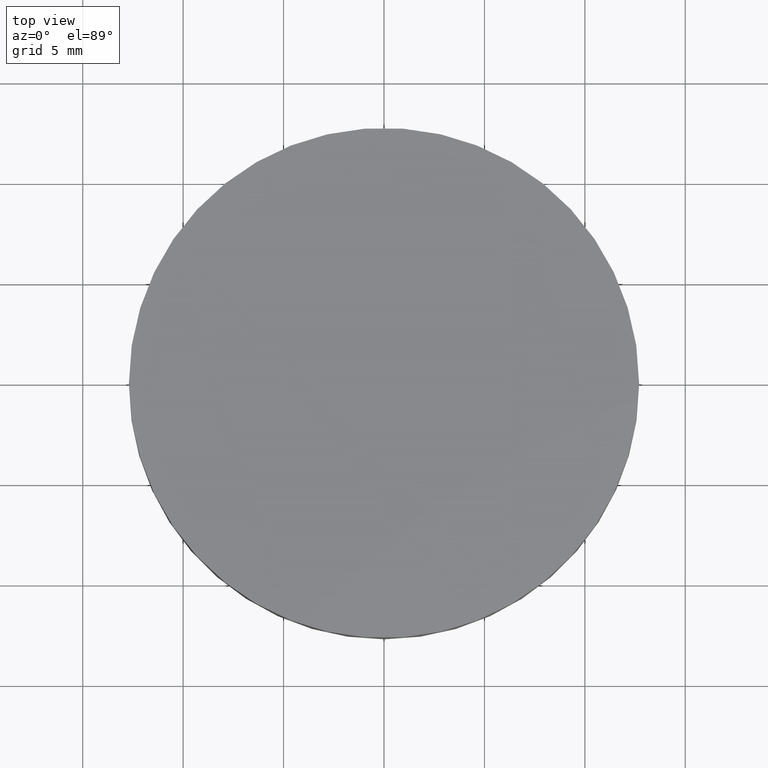
[diagram: clean part render]
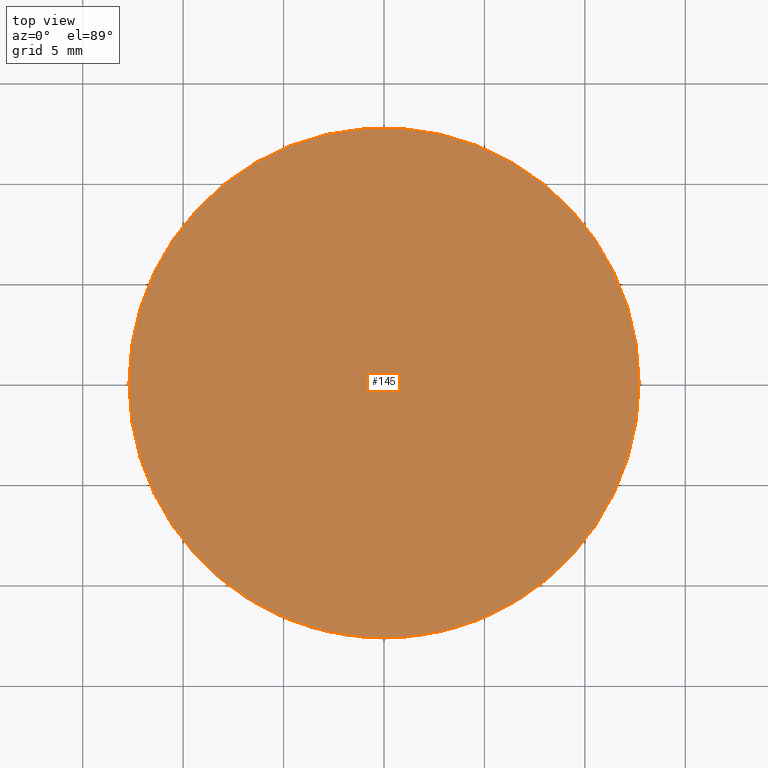
[diagram: same view with one face highlighted and labeled with its STEP entity id]
A machine part, top view. The second image highlights one B-rep face of the part: STEP entity #145.
In plain terms, the highlighted planar face has unit normal (0, 0, 1).
Its self-contained STEP definition (entity closure, byte-faithful):
#2 = DIRECTION ( 'NONE',  ( -6.993530863780509846E-17, -4.890947394265059749E-33, -1.000000000000000000 ) ) ;
#16 = AXIS2_PLACEMENT_3D ( 'NONE', #462, #336, #466 ) ;
#68 = VERTEX_POINT ( 'NONE', #377 ) ;
#82 = DIRECTION ( 'NONE',  ( 1.000000000000000000, 0.000000000000000000, -6.829619984160658046E-17 ) ) ;
#103 = CIRCLE ( 'NONE', #416, 12.69999999999999929 ) ;
#119 = EDGE_CURVE ( 'NONE', #68, #488, #103, .T. ) ;
#145 = ADVANCED_FACE ( 'NONE', ( #254 ), #410, .T. ) ;
#216 = CIRCLE ( 'NONE', #489, 12.69999999999999929 ) ;
#247 = DIRECTION ( 'NONE',  ( -6.993530863780509846E-17, -4.890947394265059749E-33, -1.000000000000000000 ) ) ;
#254 = FACE_OUTER_BOUND ( 'NONE', #314, .T. ) ;
#256 = ORIENTED_EDGE ( 'NONE', *, *, #119, .F. ) ;
#275 = ORIENTED_EDGE ( 'NONE', *, *, #425, .F. ) ;
#293 = DIRECTION ( 'NONE',  ( 1.000000000000000000, 0.000000000000000000, -6.829619984160658046E-17 ) ) ;
#314 = EDGE_LOOP ( 'NONE', ( #256, #275 ) ) ;
#336 = DIRECTION ( 'NONE',  ( 0.000000000000000000, 0.000000000000000000, 1.000000000000000000 ) ) ;
#366 = CARTESIAN_POINT ( 'NONE',  ( 1.154110800375616501E-15, -8.881784197001250351E-16, 5.999999999999999112 ) ) ;
#375 = CARTESIAN_POINT ( 'NONE',  ( 1.154110800375616501E-15, -8.881784197001250351E-16, 5.999999999999999112 ) ) ;
#377 = CARTESIAN_POINT ( 'NONE',  ( 12.70000000000000107, -8.881784197001250351E-16, 5.999999999999998224 ) ) ;
#410 = PLANE ( 'NONE',  #16 ) ;
#416 = AXIS2_PLACEMENT_3D ( 'NONE', #375, #2, #293 ) ;
#425 = EDGE_CURVE ( 'NONE', #488, #68, #216, .T. ) ;
#462 = CARTESIAN_POINT ( 'NONE',  ( 0.000000000000000000, 26.11199999999999832, 6.000000000000000000 ) ) ;
#466 = DIRECTION ( 'NONE',  ( 1.000000000000000000, 0.000000000000000000, -0.000000000000000000 ) ) ;
#488 = VERTEX_POINT ( 'NONE', #528 ) ;
#489 = AXIS2_PLACEMENT_3D ( 'NONE', #366, #247, #82 ) ;
#528 = CARTESIAN_POINT ( 'NONE',  ( -12.69999999999999751, 6.671230152170134961E-16, 6.000000000000000000 ) ) ;